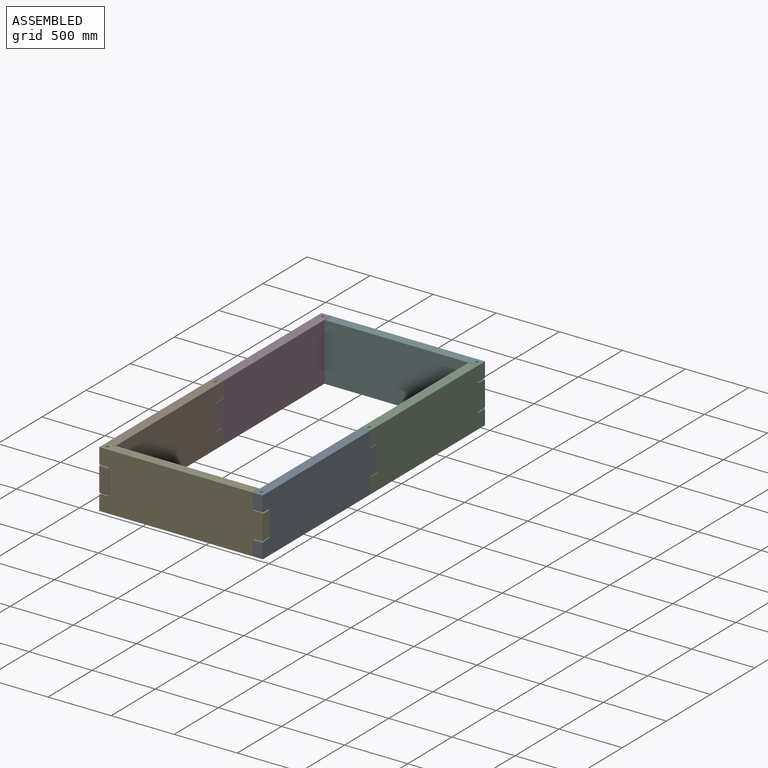
[diagram: assembled view]
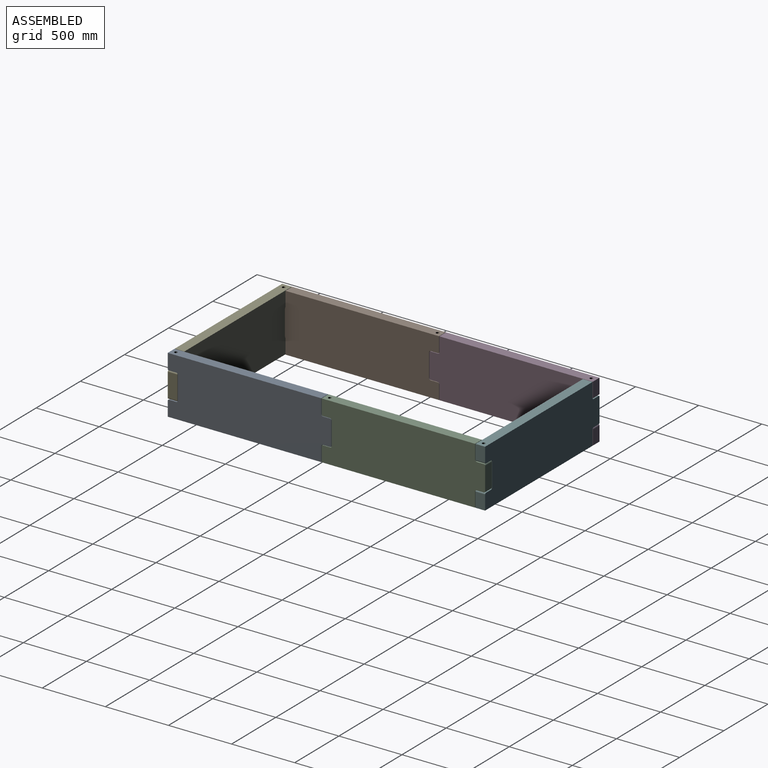
[diagram: assembled view, second angle]
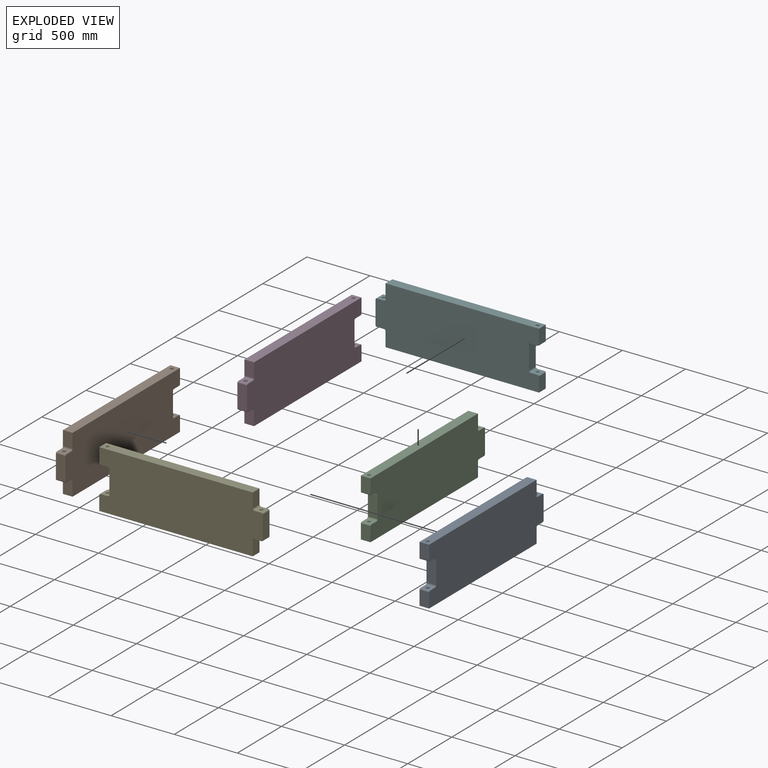
[diagram: exploded view]
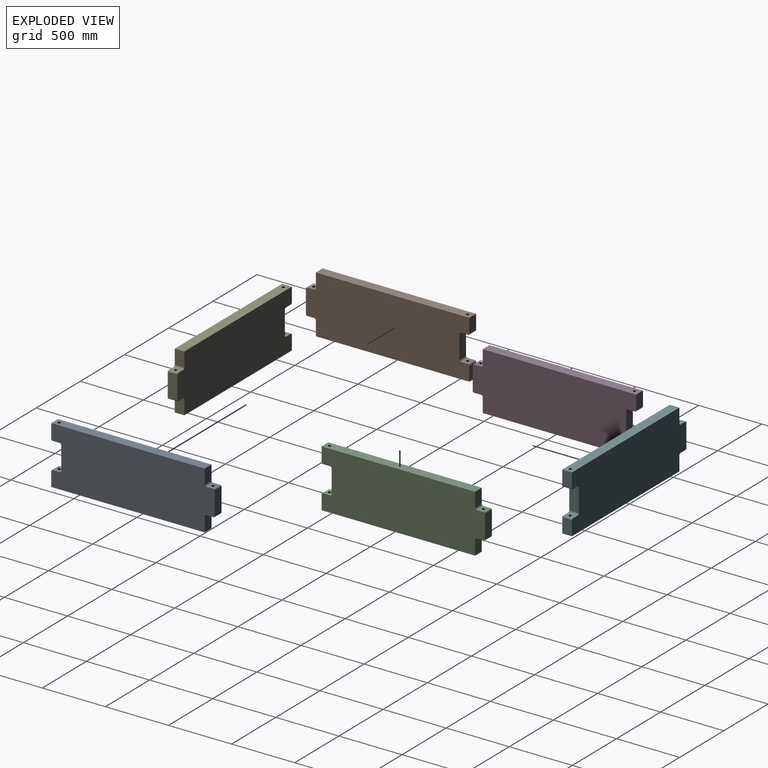
[diagram: exploded view, second angle]
ASSEMBLY  parts=6 mates=5
PART A: 65 faces, bbox 1295.4x76.2x457.2 mm
  f0: plane 76.2x57.15mm, normal (0,0,-1), area 3848.1mm2, adj f12,f13,f14,f17,f21
  f1: plane 184.15x76.2mm, normal (-1,0,0), area 14032.2mm2, adj f12,f13,f21,f22
  f2: plane 76.2x57.15mm, normal (0,0,1), area 3848.1mm2, adj f12,f13,f16,f18,f22
  f3: plane 114.3x76.2mm, normal (-1,0,0), area 8709.7mm2, adj f4,f12,f13,f18
  f4: plane 1216.03x76.2mm, normal (0,0,-1), area 92154.4mm2, adj f3,f5,f12,f13,f16
  f5: plane 114.3x76.2mm, normal (1,0,0), area 8709.7mm2, adj f4,f12,f13,f24
  f6: plane 76.2x57.15mm, normal (0,0,-1), area 3848.1mm2, adj f12,f13,f15,f19,f24
  f7: plane 184.15x76.2mm, normal (1,0,0), area 14032.2mm2, adj f12,f13,f19,f20
  f8: plane 76.2x57.15mm, normal (0,0,1), area 3848.1mm2, adj f12,f13,f15,f20,f23
  f9: plane 114.3x76.2mm, normal (1,0,0), area 8709.7mm2, adj f10,f12,f13,f23
  f10: plane 1216.03x76.2mm, normal (0,0,1), area 92154.4mm2, adj f9,f11,f12,f13,f14
  f11: plane 114.3x76.2mm, normal (-1,0,0), area 8709.7mm2, adj f10,f12,f13,f17
  f12: plane 1295.4x457.2mm, normal (0,-1,0), area 555523.2mm2, adj f0,f1,f2,f3,f4,f5,f6,f7
  f13: plane 1295.4x457.2mm, normal (0,1,0), area 555523.2mm2, adj f0,f1,f2,f3,f4,f5,f6,f7
  f14: cylinder r=12.7mm len=123.83mm, axis (0,0,1), area 9880.8mm2, adj f0,f10
  f15: cylinder r=12.7mm len=203.2mm, axis (0,0,1), area 16214.6mm2, adj f6,f8
  f16: cylinder r=12.7mm len=123.83mm, axis (0,0,1), area 9880.8mm2, adj f2,f4
  f17: cylinder r=9.53mm len=76.2mm, axis (0,1,0), area 1140.1mm2, adj f0,f11,f12,f13
  f18: cylinder r=9.53mm len=76.2mm, axis (0,1,0), area 1140.1mm2, adj f2,f3,f12,f13
  f19: cylinder r=9.53mm len=76.2mm, axis (0,1,0), area 1140.1mm2, adj f6,f7,f12,f13
  f20: cylinder r=9.53mm len=76.2mm, axis (0,1,0), area 1140.1mm2, adj f7,f8,f12,f13
  f21: cylinder r=12.7mm len=76.2mm, axis (0,-1,0), area 1520.1mm2, adj f0,f1,f12,f13
  f22: cylinder r=12.7mm len=76.2mm, axis (0,1,0), area 1520.1mm2, adj f1,f2,f12,f13
  f23: cylinder r=12.7mm len=76.2mm, axis (0,-1,0), area 1520.1mm2, adj f8,f9,f12,f13
  f24: cylinder r=12.7mm len=76.2mm, axis (0,-1,0), area 1520.1mm2, adj f5,f6,f12,f13
  f25: plane 139.7x50.8mm, normal (1,0,0), area 7096.8mm2, adj f26,f32,f33,f34
  f26: cylinder r=25.4mm len=50.8mm, axis (0,-1,0), area 2026.8mm2, adj f25,f27,f33,f34
  f27: plane 479.43x50.8mm, normal (0,0,1), area 24354.8mm2, adj f26,f28,f33,f34
  f28: cylinder r=25.4mm len=50.8mm, axis (0,-1,0), area 2026.8mm2, adj f27,f29,f33,f34
  f29: plane 139.7x50.8mm, normal (-1,0,0), area 7096.8mm2, adj f28,f30,f33,f34
  f30: cylinder r=25.4mm len=50.8mm, axis (0,-1,0), area 2026.8mm2, adj f29,f31,f33,f34
  f31: plane 479.43x50.8mm, normal (0,0,-1), area 24354.8mm2, adj f30,f32,f33,f34
  f32: cylinder r=25.4mm len=50.8mm, axis (0,-1,0), area 2026.8mm2, adj f25,f31,f33,f34
  f33: plane 530.23x190.5mm, normal (0,-1,0), area 100454.1mm2, adj f25,f26,f27,f28,f29,f30,f31,f32
  f34: plane 530.23x190.5mm, normal (0,1,0), area 100454.1mm2, adj f25,f26,f27,f28,f29,f30,f31,f32
  f35: plane 479.43x50.8mm, normal (0,0,1), area 24354.8mm2, adj f36,f42,f43,f44
  f36: cylinder r=25.4mm len=50.8mm, axis (0,-1,0), area 2026.8mm2, adj f35,f37,f43,f44
  f37: plane 139.7x50.8mm, normal (-1,0,0), area 7096.8mm2, adj f36,f38,f43,f44
  f38: cylinder r=25.4mm len=50.8mm, axis (0,-1,0), area 2026.8mm2, adj f37,f39,f43,f44
  f39: plane 479.43x50.8mm, normal (0,0,-1), area 24354.8mm2, adj f38,f40,f43,f44
  f40: cylinder r=25.4mm len=50.8mm, axis (0,-1,0), area 2026.8mm2, adj f39,f41,f43,f44
  f41: plane 139.7x50.8mm, normal (1,0,0), area 7096.8mm2, adj f40,f42,f43,f44
  f42: cylinder r=25.4mm len=50.8mm, axis (0,-1,0), area 2026.8mm2, adj f35,f41,f43,f44
  f43: plane 530.23x190.5mm, normal (0,-1,0), area 100454.1mm2, adj f35,f36,f37,f38,f39,f40,f41,f42
  f44: plane 530.23x190.5mm, normal (0,1,0), area 100454.1mm2, adj f35,f36,f37,f38,f39,f40,f41,f42
  f45: cylinder r=25.4mm len=50.8mm, axis (0,-1,0), area 2026.8mm2, adj f46,f52,f53,f54
  f46: plane 139.7x50.8mm, normal (1,0,0), area 7096.8mm2, adj f45,f47,f53,f54
  f47: cylinder r=25.4mm len=50.8mm, axis (0,-1,0), area 2026.8mm2, adj f46,f48,f53,f54
  f48: plane 479.43x50.8mm, normal (0,0,1), area 24354.8mm2, adj f47,f49,f53,f54
  f49: cylinder r=25.4mm len=50.8mm, axis (0,-1,0), area 2026.8mm2, adj f48,f50,f53,f54
  f50: plane 139.7x50.8mm, normal (-1,0,0), area 7096.8mm2, adj f49,f51,f53,f54
  f51: cylinder r=25.4mm len=50.8mm, axis (0,-1,0), area 2026.8mm2, adj f50,f52,f53,f54
  f52: plane 479.43x50.8mm, normal (0,0,-1), area 24354.8mm2, adj f45,f51,f53,f54
  f53: plane 530.23x190.5mm, normal (0,-1,0), area 100454.1mm2, adj f45,f46,f47,f48,f49,f50,f51,f52
  f54: plane 530.23x190.5mm, normal (0,1,0), area 100454.1mm2, adj f45,f46,f47,f48,f49,f50,f51,f52
  f55: plane 139.7x50.8mm, normal (-1,0,0), area 7096.8mm2, adj f56,f62,f63,f64
  f56: cylinder r=25.4mm len=50.8mm, axis (0,-1,0), area 2026.8mm2, adj f55,f57,f63,f64
  f57: plane 479.43x50.8mm, normal (0,0,-1), area 24354.8mm2, adj f56,f58,f63,f64
  f58: cylinder r=25.4mm len=50.8mm, axis (0,-1,0), area 2026.8mm2, adj f57,f59,f63,f64
  f59: plane 139.7x50.8mm, normal (1,0,0), area 7096.8mm2, adj f58,f60,f63,f64
  f60: cylinder r=25.4mm len=50.8mm, axis (0,-1,0), area 2026.8mm2, adj f59,f61,f63,f64
  f61: plane 479.43x50.8mm, normal (0,0,1), area 24354.8mm2, adj f60,f62,f63,f64
  f62: cylinder r=25.4mm len=50.8mm, axis (0,-1,0), area 2026.8mm2, adj f55,f61,f63,f64
  f63: plane 530.23x190.5mm, normal (0,-1,0), area 100454.1mm2, adj f55,f56,f57,f58,f59,f60,f61,f62
  f64: plane 530.23x190.5mm, normal (0,1,0), area 100454.1mm2, adj f55,f56,f57,f58,f59,f60,f61,f62
PART B: same geometry as A
PART C: same geometry as A
PART D: same geometry as A
PART E: same geometry as A
PART F: same geometry as A
PLACE A rot(axis=(0,0,1),90deg) t=(613.46,647.7,0)mm
PLACE B rot(axis=(-0.71,0.71,0),180deg) t=(-605.74,647.7,0)mm
PLACE C rot(axis=(0,0,1),90deg) t=(613.46,1866.9,0)mm
PLACE D rot(axis=(0,0,-1),90deg) t=(-605.74,1866.9,0)mm
PLACE E t=(3.86,38.1,0)mm
PLACE F rot(axis=(0,0,1),180deg) t=(3.86,2476.5,0)mm
MATE fastened F.f14 <-> C.f15  axis (0,0,1) through (613.46,2476.5,0)mm
MATE fastened C.f14 <-> A.f15  axis (0,0,1) through (613.46,1257.3,0)mm
MATE fastened D.f14 <-> F.f15  axis (0,0,1) through (-605.74,2476.5,0)mm
MATE fastened A.f14 <-> E.f15  axis (0,0,1) through (613.46,38.1,0)mm
MATE fastened B.f14 <-> D.f15  axis (0,0,-1) through (-605.74,1257.3,0)mm
